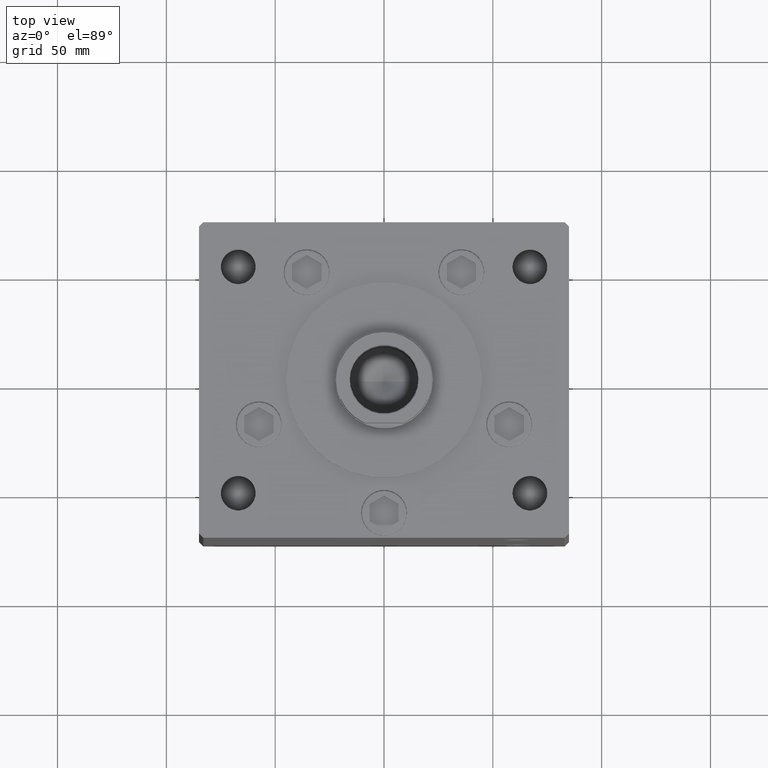
[diagram: clean part render]
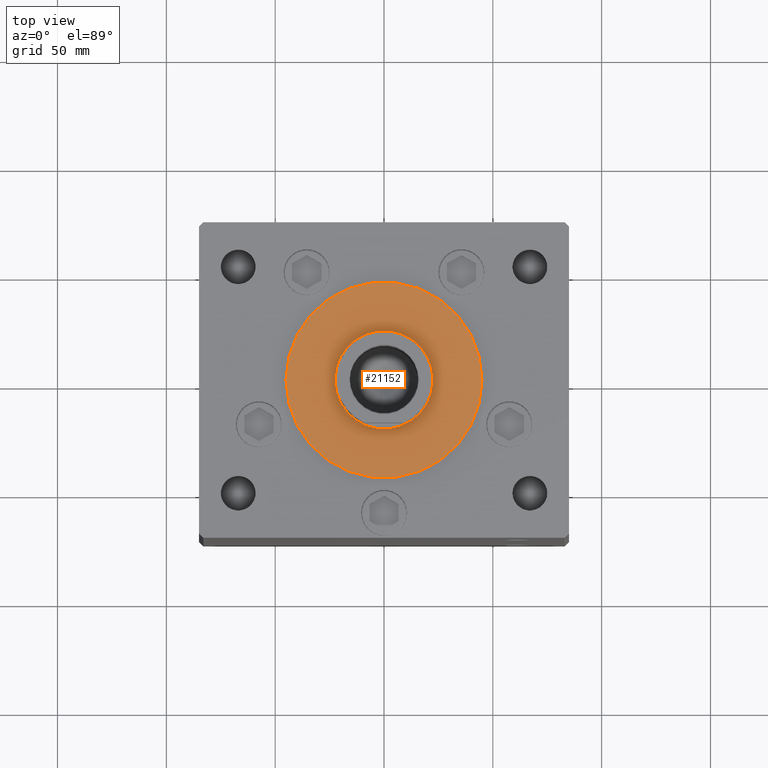
[diagram: same view with one face highlighted and labeled with its STEP entity id]
A machine part, top view. The second image highlights one B-rep face of the part: STEP entity #21152.
In plain terms, the highlighted planar face has unit normal (0, 0, 1).
Its self-contained STEP definition (entity closure, byte-faithful):
#176 = DIRECTION ( 'NONE',  ( 0.000000000000000000, 0.000000000000000000, 1.000000000000000000 ) ) ;
#2804 = CARTESIAN_POINT ( 'NONE',  ( 45.00000000000000711, -1.427983307744138033E-15, 2.000000000000000000 ) ) ;
#3429 = CARTESIAN_POINT ( 'NONE',  ( 0.000000000000000000, -6.938893903907228378E-15, 2.000000000000000000 ) ) ;
#3691 = DIRECTION ( 'NONE',  ( 0.000000000000000000, 0.000000000000000000, 1.000000000000000000 ) ) ;
#5070 = AXIS2_PLACEMENT_3D ( 'NONE', #5502, #22660, #26084 ) ;
#5502 = CARTESIAN_POINT ( 'NONE',  ( 0.000000000000000000, -6.938893903907228378E-15, 2.000000000000000000 ) ) ;
#13392 = VERTEX_POINT ( 'NONE', #21885 ) ;
#14981 = CARTESIAN_POINT ( 'NONE',  ( -45.00000000000000711, -6.938893903907228378E-15, 2.000000000000000000 ) ) ;
#15392 = DIRECTION ( 'NONE',  ( 1.000000000000000000, 0.000000000000000000, -0.000000000000000000 ) ) ;
#15443 = EDGE_CURVE ( 'NONE', #32054, #13392, #51733, .T. ) ;
#15680 = AXIS2_PLACEMENT_3D ( 'NONE', #51499, #19357, #15392 ) ;
#15908 = PLANE ( 'NONE',  #15680 ) ;
#16775 = DIRECTION ( 'NONE',  ( 1.000000000000000000, 0.000000000000000000, 0.000000000000000000 ) ) ;
#19105 = FACE_OUTER_BOUND ( 'NONE', #45380, .T. ) ;
#19357 = DIRECTION ( 'NONE',  ( 0.000000000000000000, 0.000000000000000000, 1.000000000000000000 ) ) ;
#19970 = CIRCLE ( 'NONE', #26737, 22.50000000000000355 ) ;
#21152 = ADVANCED_FACE ( 'NONE', ( #35681, #19105 ), #15908, .T. ) ;
#21450 = AXIS2_PLACEMENT_3D ( 'NONE', #48611, #41744, #29377 ) ;
#21885 = CARTESIAN_POINT ( 'NONE',  ( 22.50000000000000355, -6.938893903907228378E-15, 2.000000000000000000 ) ) ;
#22660 = DIRECTION ( 'NONE',  ( 0.000000000000000000, 0.000000000000000000, 1.000000000000000000 ) ) ;
#24576 = AXIS2_PLACEMENT_3D ( 'NONE', #3429, #3691, #32404 ) ;
#26084 = DIRECTION ( 'NONE',  ( 1.000000000000000000, 0.000000000000000000, 0.000000000000000000 ) ) ;
#26737 = AXIS2_PLACEMENT_3D ( 'NONE', #29164, #176, #16775 ) ;
#27667 = EDGE_CURVE ( 'NONE', #13392, #32054, #19970, .T. ) ;
#29164 = CARTESIAN_POINT ( 'NONE',  ( 0.000000000000000000, -6.938893903907228378E-15, 2.000000000000000000 ) ) ;
#29377 = DIRECTION ( 'NONE',  ( 1.000000000000000000, 0.000000000000000000, 0.000000000000000000 ) ) ;
#31466 = EDGE_LOOP ( 'NONE', ( #33912, #37367 ) ) ;
#32054 = VERTEX_POINT ( 'NONE', #51888 ) ;
#32404 = DIRECTION ( 'NONE',  ( 1.000000000000000000, 0.000000000000000000, 0.000000000000000000 ) ) ;
#33464 = ORIENTED_EDGE ( 'NONE', *, *, #45788, .T. ) ;
#33912 = ORIENTED_EDGE ( 'NONE', *, *, #27667, .F. ) ;
#35681 = FACE_BOUND ( 'NONE', #31466, .T. ) ;
#37367 = ORIENTED_EDGE ( 'NONE', *, *, #15443, .F. ) ;
#39356 = ORIENTED_EDGE ( 'NONE', *, *, #51108, .T. ) ;
#41744 = DIRECTION ( 'NONE',  ( 0.000000000000000000, 0.000000000000000000, 1.000000000000000000 ) ) ;
#45380 = EDGE_LOOP ( 'NONE', ( #33464, #39356 ) ) ;
#45788 = EDGE_CURVE ( 'NONE', #48406, #46168, #49698, .T. ) ;
#46168 = VERTEX_POINT ( 'NONE', #2804 ) ;
#48406 = VERTEX_POINT ( 'NONE', #14981 ) ;
#48611 = CARTESIAN_POINT ( 'NONE',  ( 0.000000000000000000, -6.938893903907228378E-15, 2.000000000000000000 ) ) ;
#49698 = CIRCLE ( 'NONE', #5070, 45.00000000000000711 ) ;
#49812 = CIRCLE ( 'NONE', #24576, 45.00000000000000711 ) ;
#51108 = EDGE_CURVE ( 'NONE', #46168, #48406, #49812, .T. ) ;
#51499 = CARTESIAN_POINT ( 'NONE',  ( 0.000000000000000000, -6.938893903907228378E-15, 2.000000000000000000 ) ) ;
#51733 = CIRCLE ( 'NONE', #21450, 22.50000000000000355 ) ;
#51888 = CARTESIAN_POINT ( 'NONE',  ( -22.50000000000000355, -4.183438605825683600E-15, 2.000000000000000000 ) ) ;